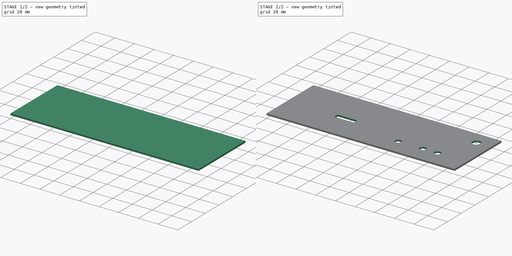
[diagram: build sequence overview — one tinted view per stage of 2, left to right]
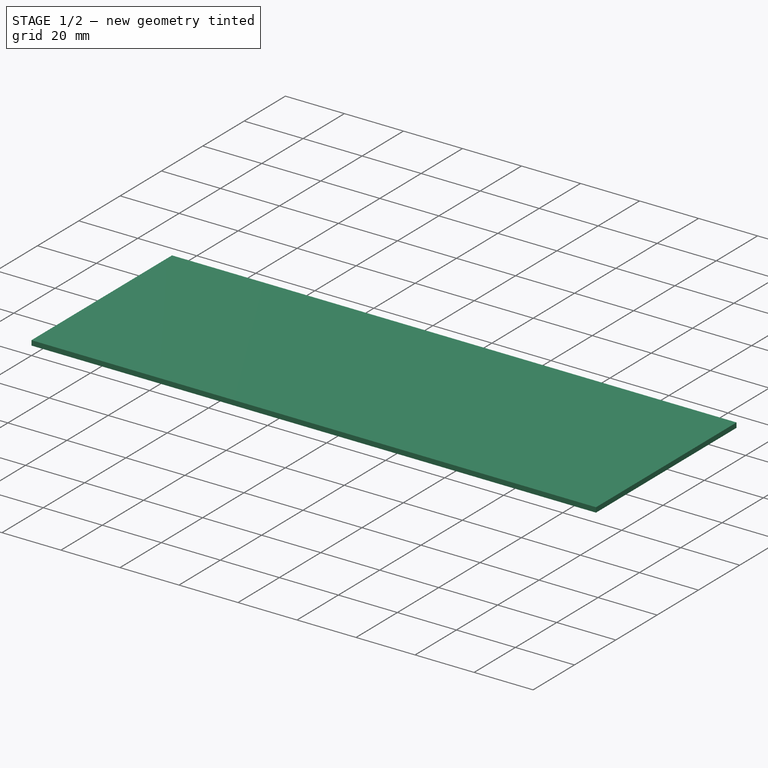
[diagram: stage 1 of 2 — iso view after this stage's code; geometry added in this stage tinted green]
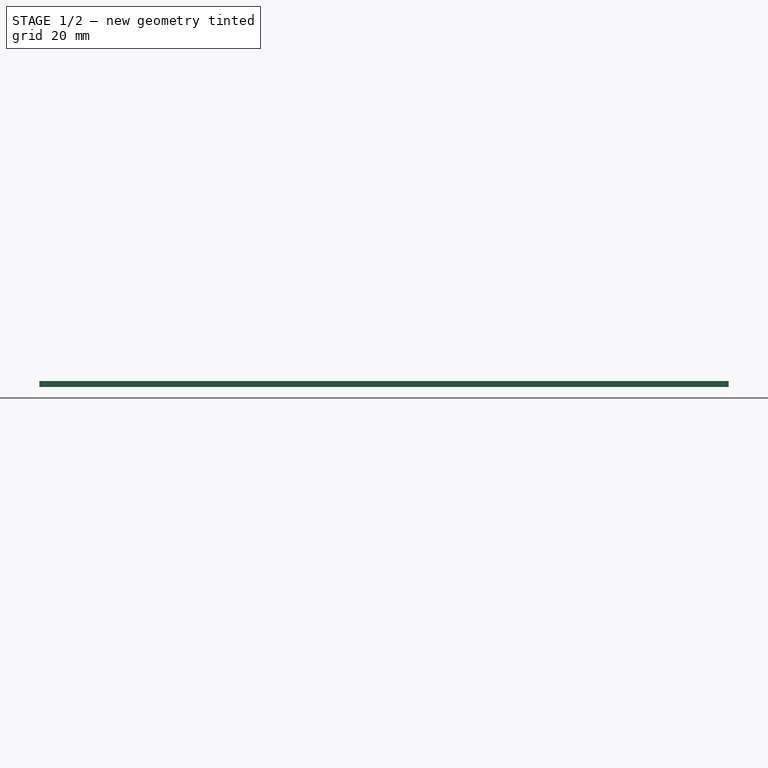
[diagram: stage 1 of 2 — front view after this stage's code; geometry added in this stage tinted green]
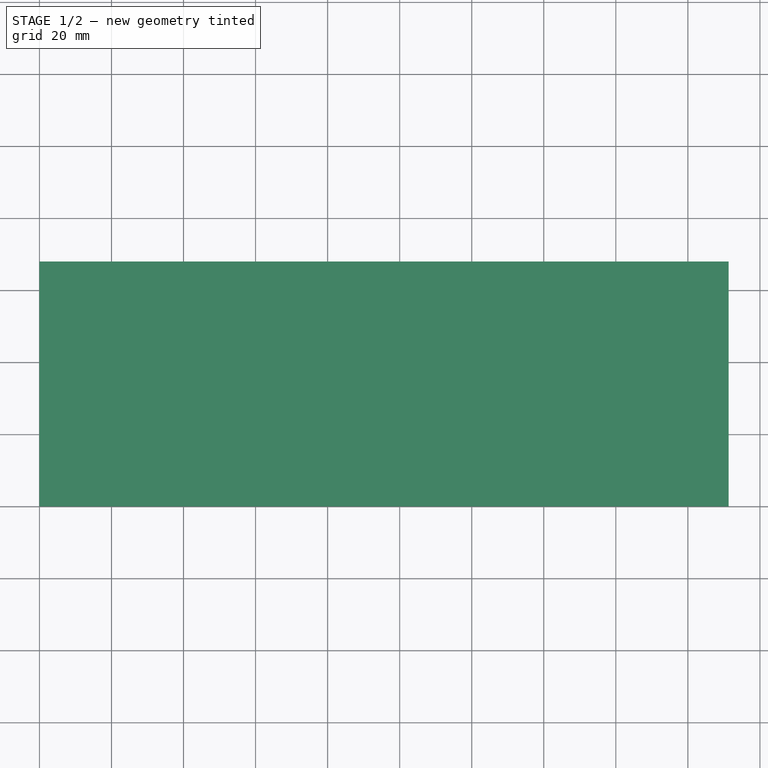
[diagram: stage 1 of 2 — top view after this stage's code; geometry added in this stage tinted green]
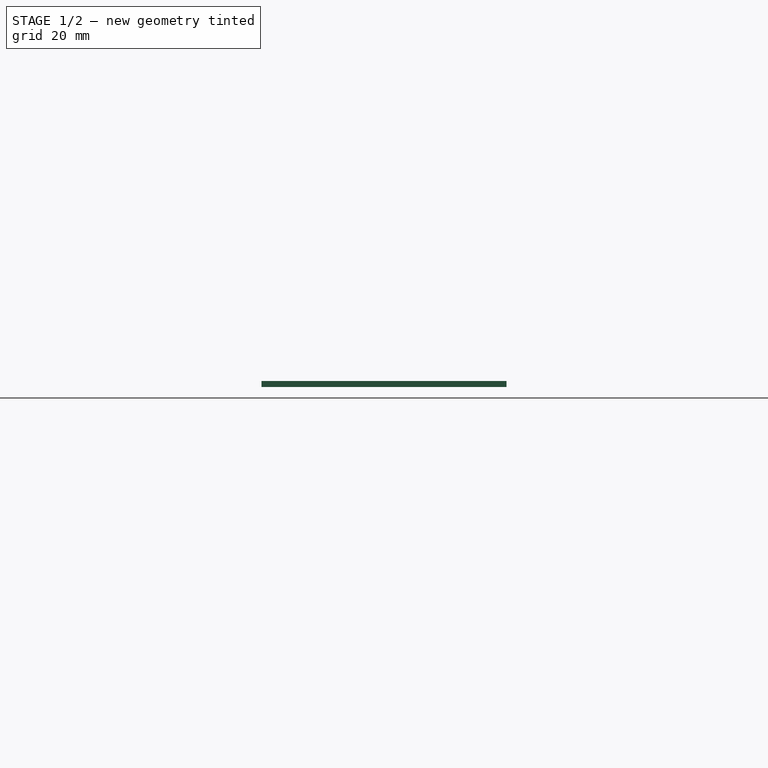
[diagram: stage 1 of 2 — right view after this stage's code; geometry added in this stage tinted green]
FCSTD DOCUMENT  (FreeCAD 0.18R4 (GitTag))
Label: back panel
License: All rights reserved
LicenseURL: http://en.wikipedia.org/wiki/All_rights_reserved
objects: Sketcher::SketchObject×2, PartDesign::Pad×1, PartDesign::Pocket×1, PartDesign::Body×1
note: 7 computed .brp shape members not serialized (recipe doc carries the construction recipe); baked Part::Feature solids carry a one-line shape summary decoded from their .brp

FEATURE [Sketcher::SketchObject] Sketch
  MapMode = 5
  Support = -> [XY_Plane]
  sketch-geometry (4):
    g0: LineSegment StartX=0 StartY=0 StartZ=0 EndX=191.3 EndY=0 EndZ=0
    g1: LineSegment StartX=191.3 StartY=0 StartZ=0 EndX=191.3 EndY=68 EndZ=0
    g2: LineSegment StartX=191.3 StartY=68 StartZ=0 EndX=0 EndY=68 EndZ=0
    g3: LineSegment StartX=0 StartY=68 StartZ=0 EndX=0 EndY=0 EndZ=0
  constraints (11):
    c: Coincident(g0,g1)
    c: Coincident(g1,g2)
    c: Coincident(g2,g3)
    c: Coincident(g3,g0)
    c: Horizontal(g0)
    c: Horizontal(g2)
    c: Vertical(g1)
    c: Vertical(g3)
    c: Coincident(g0,g-1)
    c: DistanceY(g1,g1) = 68
    c: DistanceX(g2,g2) = 191.3
FEATURE [PartDesign::Pad] Pad
  Length = 1.65
  Length2 = 100
  Profile = -> Sketch
  Type = 0
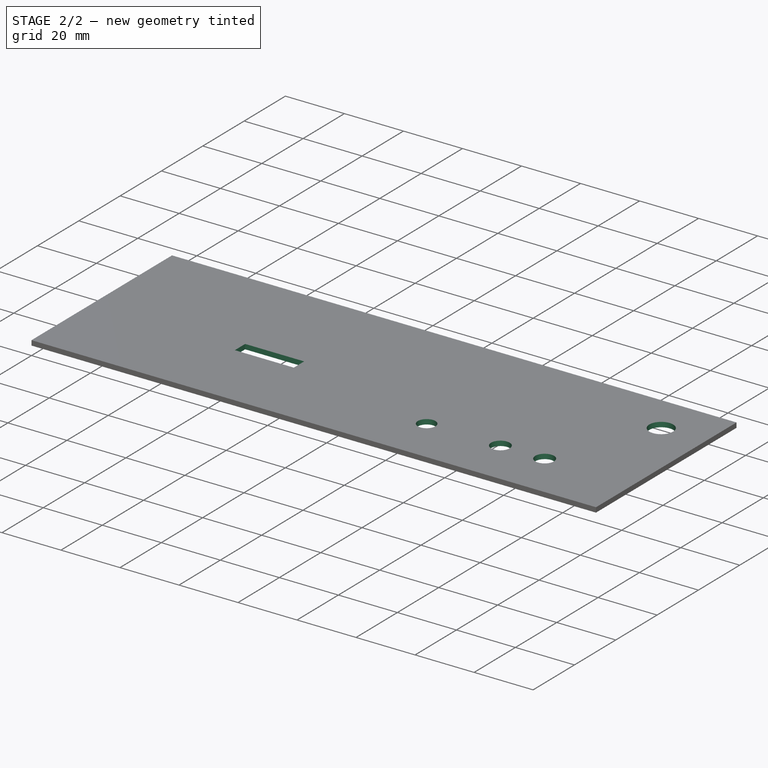
[diagram: stage 2 of 2 — iso view after this stage's code; geometry added in this stage tinted green]
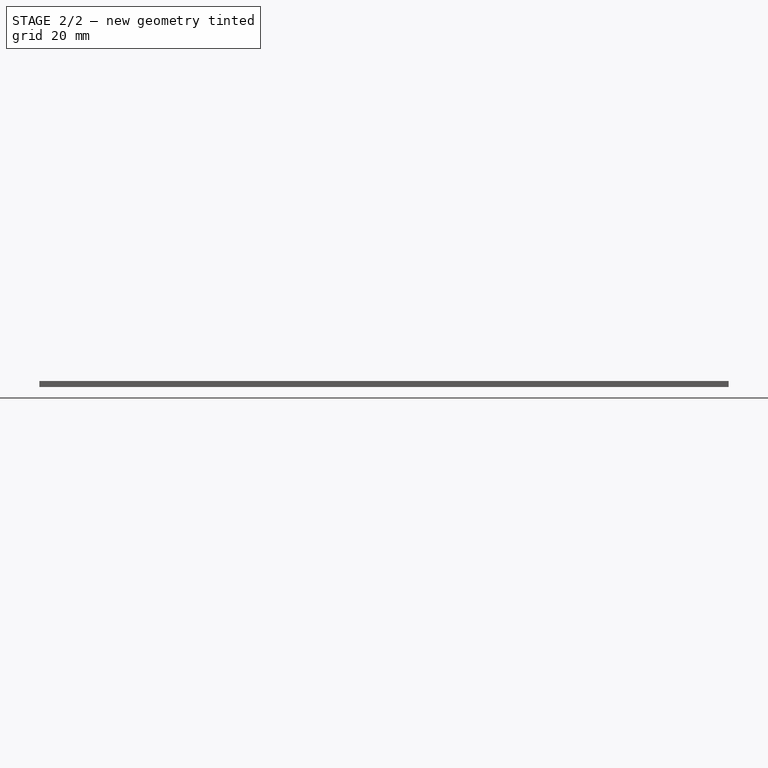
[diagram: stage 2 of 2 — front view after this stage's code; geometry added in this stage tinted green]
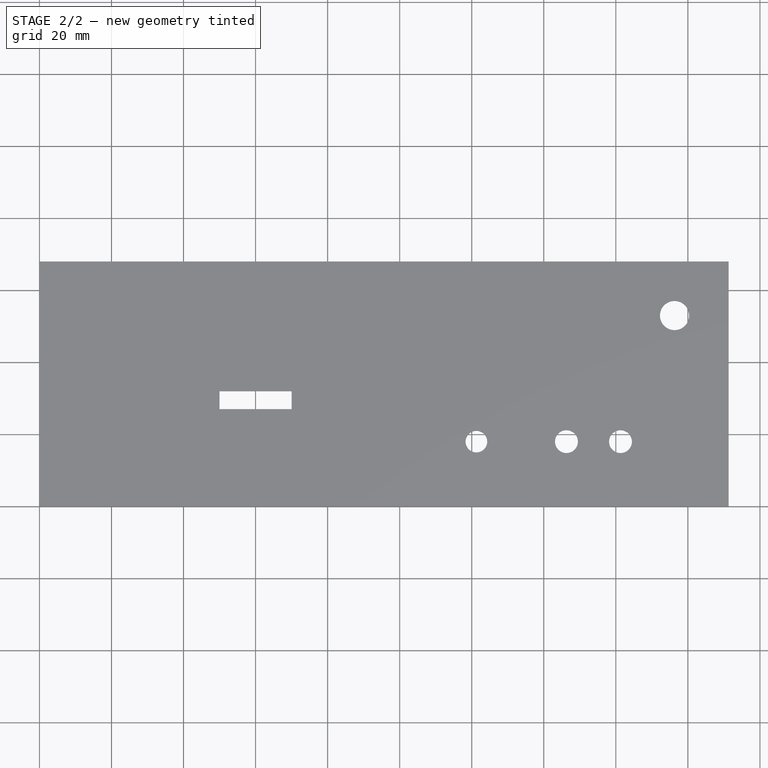
[diagram: stage 2 of 2 — top view after this stage's code; geometry added in this stage tinted green]
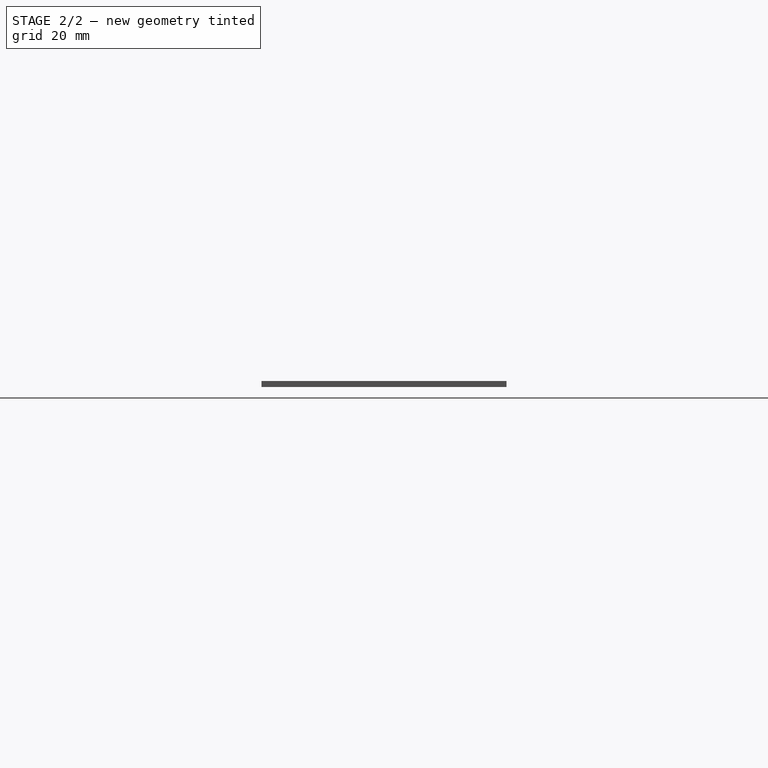
[diagram: stage 2 of 2 — right view after this stage's code; geometry added in this stage tinted green]
FEATURE [Sketcher::SketchObject] Sketch001
  MapMode = 5
  Placement = pos=(0,0,1.65) rot=(0,0,1;0rad)
  Support = -> [Pad]
  sketch-geometry (13):
    g0: LineSegment StartX=50 StartY=32 StartZ=0 EndX=70 EndY=32 EndZ=0
    g1: LineSegment StartX=70 StartY=32 StartZ=0 EndX=70 EndY=27 EndZ=0
    g2: LineSegment StartX=70 StartY=27 StartZ=0 EndX=50 EndY=27 EndZ=0
    g3: LineSegment StartX=50 StartY=27 StartZ=0 EndX=50 EndY=32 EndZ=0
    g4: Circle CenterX=176.3 CenterY=53 CenterZ=0 NormalX=0 NormalY=0 NormalZ=1 AngleXU=0 Radius=4.05
    g5: Circle CenterX=121.3 CenterY=18 CenterZ=0 NormalX=0 NormalY=0 NormalZ=1 AngleXU=0 Radius=3
    g6: LineSegment [constr] StartX=1e-16 StartY=0 StartZ=0 EndX=191.3 EndY=0 EndZ=0
    g7: LineSegment [constr] StartX=191.3 StartY=0 StartZ=0 EndX=191.3 EndY=68 EndZ=0
    g8: LineSegment [constr] StartX=191.3 StartY=68 StartZ=0 EndX=0 EndY=68 EndZ=0
    g9: LineSegment [constr] StartX=1e-16 StartY=68 StartZ=0 EndX=1e-16 EndY=0 EndZ=0
    g10: Circle CenterX=146.3 CenterY=18 CenterZ=0 NormalX=0 NormalY=0 NormalZ=1 AngleXU=0 Radius=3.175
    g11: Circle CenterX=161.3 CenterY=18 CenterZ=0 NormalX=0 NormalY=0 NormalZ=1 AngleXU=0 Radius=3.175
    g12: LineSegment [constr] StartX=146.3 StartY=18 StartZ=0 EndX=161.3 EndY=18 EndZ=0
  constraints (38):
    c: Coincident(g0,g1)
    c: Coincident(g1,g2)
    c: Coincident(g2,g3)
    c: Coincident(g3,g0)
    c: Horizontal(g0)
    c: Horizontal(g2)
    c: Vertical(g1)
    c: Vertical(g3)
    c: DistanceY(g1,g1) = 5
    c: DistanceX(g0,g0) = 20
    c: DistanceY(g-1,g1) = 27
    c: DistanceX(g-1,g2) = 50
    c: Diameter(g4) = 8.1
    c: Diameter(g5) = 6
    c: Coincident(g6,g7)
    c: Coincident(g7,g8)
    c: Coincident(g8,g9)
    c: Coincident(g9,g6)
    c: Horizontal(g6)
    c: Horizontal(g8)
    c: Vertical(g7)
    c: Vertical(g9)
    c: Coincident(g6,g-1)
    c: DistanceY(g7,g7) = 68
    c: DistanceX(g8,g8) = 191.3
    c: DistanceX(g4,g7) = 15
    c: DistanceY(g4,g7) = 15
    c: Diameter(g10) = 6.35
    c: DistanceY(g5,g7) = 50
    c: Equal(g10,g11) = 6.35
    c: Coincident(g10,g12)
    c: Coincident(g11,g12)
    c: Distance(g12) = 15
    c: Angle(g12) = 0
    c: Horizontal(g11,g5)
    c: DistanceX(g11,g7) = 30
    c: DistanceX(g5,g10) = 25
    c: DistanceX(g5,g6) = 70
FEATURE [PartDesign::Pocket] Pocket
  BaseFeature = -> Pad
  Length = 5
  Length2 = 100
  Profile = -> Sketch001
  Type = 0
FEATURE [PartDesign::Body] Body
  Group = -> [Sketch,Pad,Sketch001,Pocket]
  Origin = -> Origin
  Tip = -> Pocket
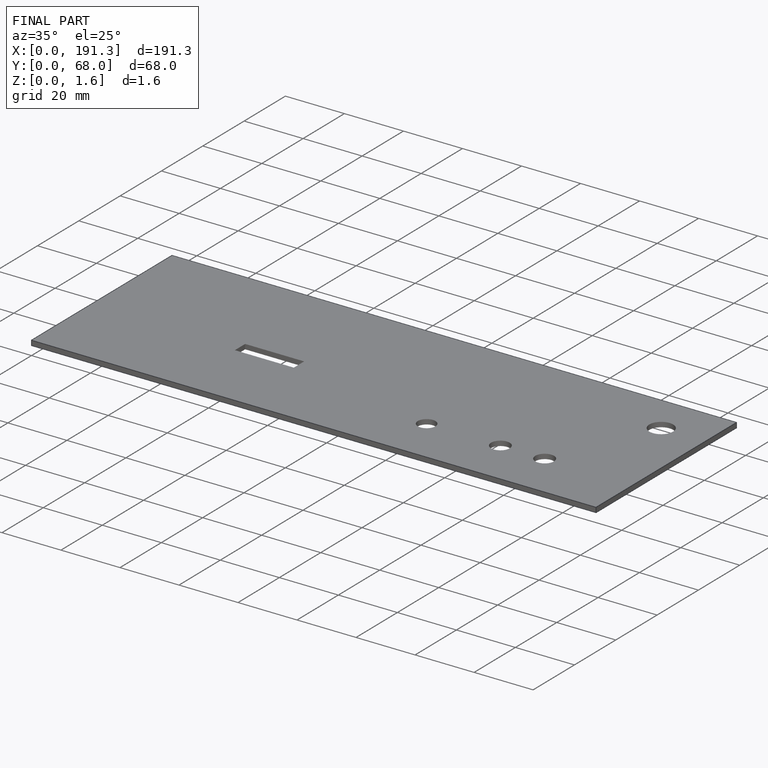
[diagram: finished part — iso view with bounding-box wireframe]
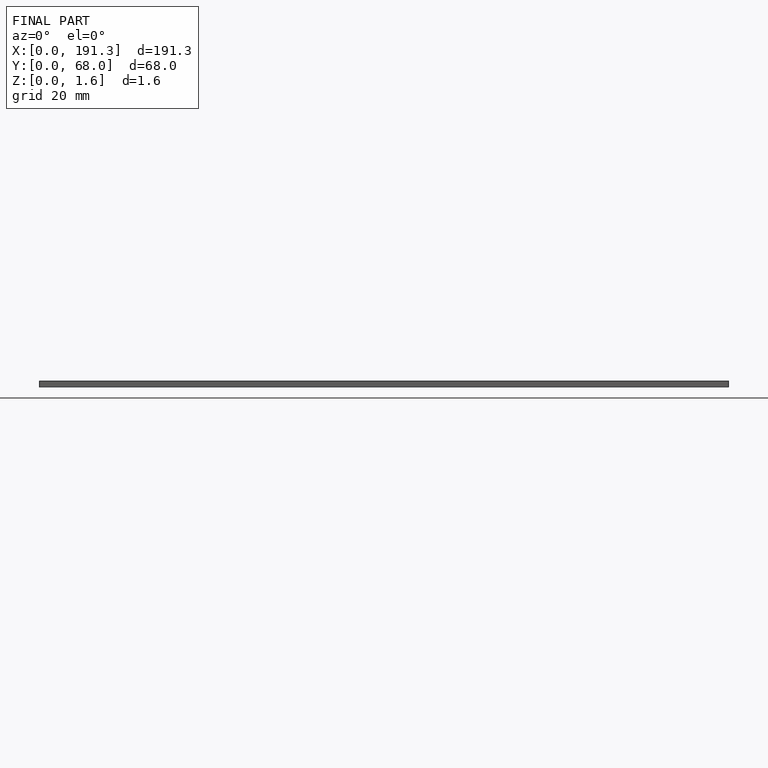
[diagram: finished part — front view with bounding-box wireframe]
